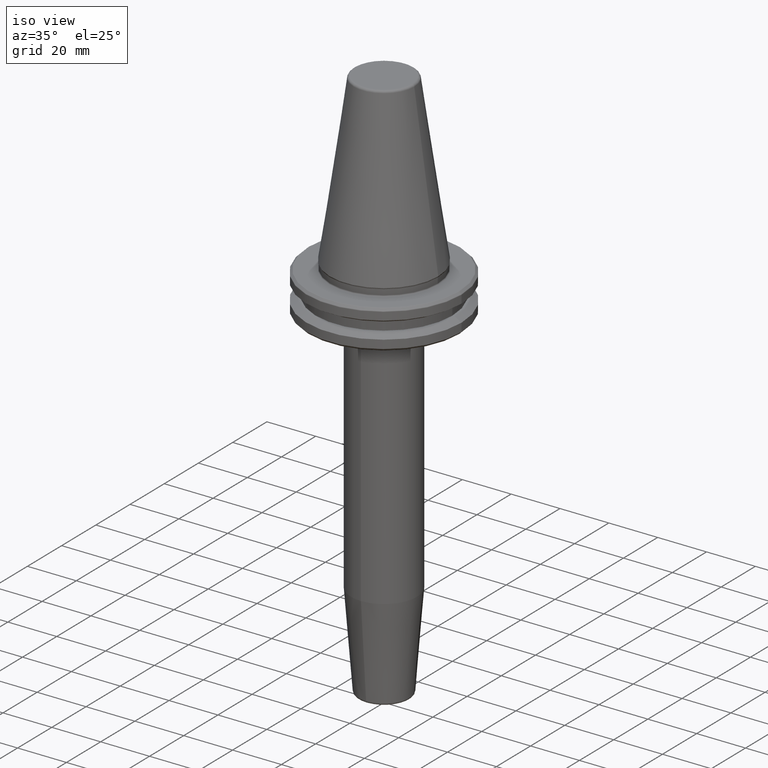
[diagram: clean part render]
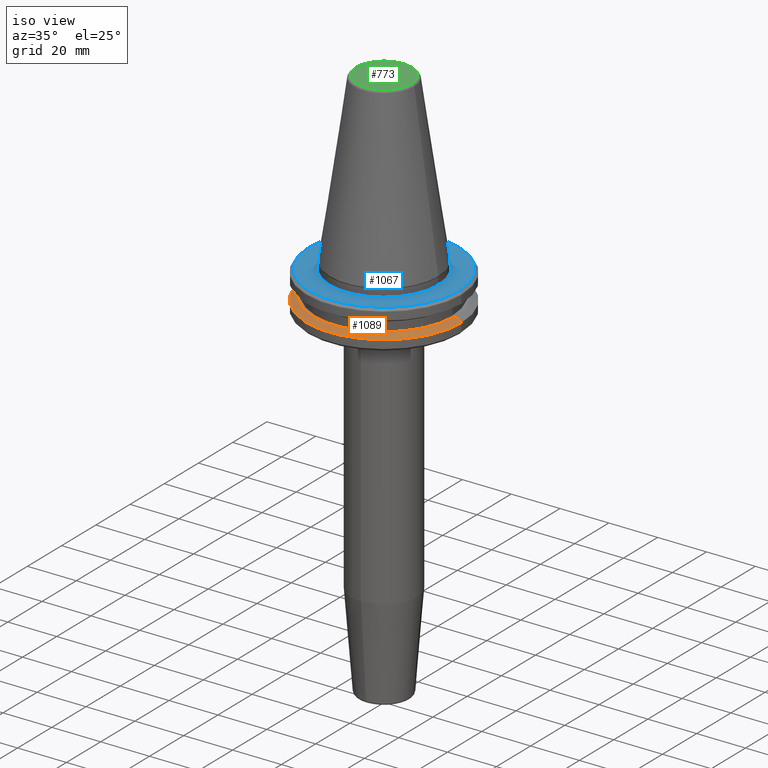
[diagram: same view with three faces highlighted in distinct colors, each labeled with its STEP entity id]
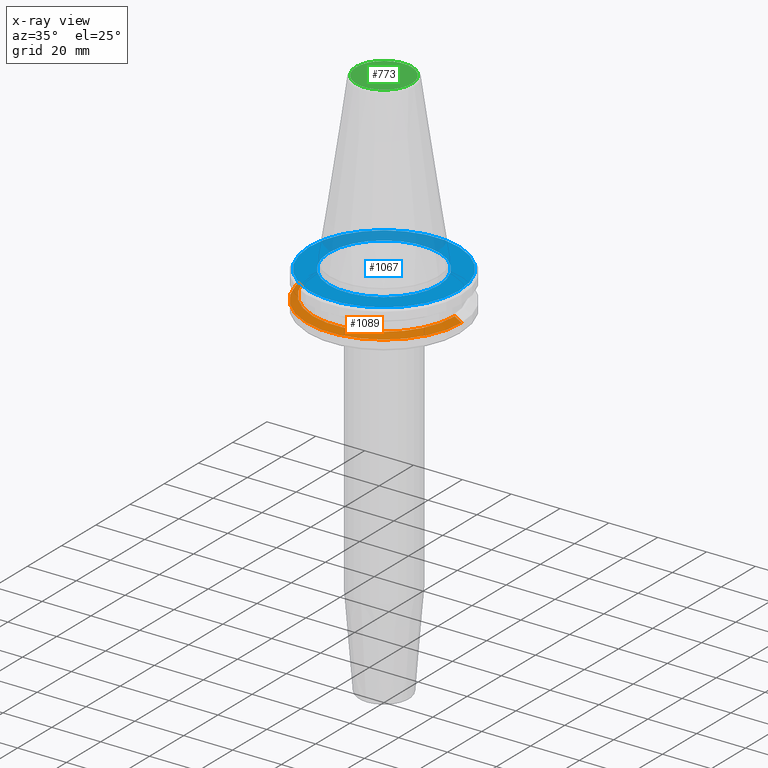
[diagram: x-ray of the same camera — body ghosted, the three highlighted faces saturated]
A machine part, iso view with three faces highlighted in distinct colors.
The next image is the same camera in x-ray (body ghosted, the three faces saturated) — at least one of them is partly hidden behind the body in this view.
Their STEP definitions:

[orange] entity #1089 — the highlighted conical surface has half-angle 60 deg.
#11 = AXIS2_PLACEMENT_3D ( 'NONE', #457, #555, #149 ) ;
#100 = ORIENTED_EDGE ( 'NONE', *, *, #562, .F. ) ;
#149 = DIRECTION ( 'NONE',  ( -1.000000000000000000, 0.0000000000000000000, 0.0000000000000000000 ) ) ;
#184 = CARTESIAN_POINT ( 'NONE',  ( 28.94089653438085100, 3.544237630528423800E-015, -13.00000000000001100 ) ) ;
#208 = DIRECTION ( 'NONE',  ( 1.000000000000000000, 0.0000000000000000000, 0.0000000000000000000 ) ) ;
#231 = LINE ( 'NONE', #289, #706 ) ;
#234 = FACE_OUTER_BOUND ( 'NONE', #1066, .T. ) ;
#236 = EDGE_CURVE ( 'NONE', #983, #947, #423, .T. ) ;
#267 = VECTOR ( 'NONE', #383, 999.9999999999998900 ) ;
#289 = CARTESIAN_POINT ( 'NONE',  ( -28.94089653438085100, 0.0000000000000000000, -13.00000000000001100 ) ) ;
#291 = CIRCLE ( 'NONE', #580, 28.94089653438085100 ) ;
#365 = AXIS2_PLACEMENT_3D ( 'NONE', #995, #410, #519 ) ;
#383 = DIRECTION ( 'NONE',  ( 0.8660254037844420400, 1.060575238724911000E-016, -0.4999999999999943900 ) ) ;
#409 = CARTESIAN_POINT ( 'NONE',  ( -28.94089653438085100, 0.0000000000000000000, -13.00000000000001100 ) ) ;
#410 = DIRECTION ( 'NONE',  ( -0.0000000000000000000, -0.0000000000000000000, 1.000000000000000000 ) ) ;
#423 = CIRCLE ( 'NONE', #365, 31.75000000000000000 ) ;
#457 = CARTESIAN_POINT ( 'NONE',  ( 0.0000000000000000000, 0.0000000000000000000, -13.00000000000001100 ) ) ;
#465 = VERTEX_POINT ( 'NONE', #638 ) ;
#469 = ORIENTED_EDGE ( 'NONE', *, *, #236, .T. ) ;
#476 = DIRECTION ( 'NONE',  ( -0.8660254037844420400, 0.0000000000000000000, -0.4999999999999943900 ) ) ;
#496 = LINE ( 'NONE', #184, #267 ) ;
#519 = DIRECTION ( 'NONE',  ( 1.000000000000000000, 0.0000000000000000000, 0.0000000000000000000 ) ) ;
#540 = CARTESIAN_POINT ( 'NONE',  ( -31.75000000000000000, 3.888253587292846500E-015, -14.62183664205671200 ) ) ;
#555 = DIRECTION ( 'NONE',  ( 0.0000000000000000000, 0.0000000000000000000, -1.000000000000000000 ) ) ;
#562 = EDGE_CURVE ( 'NONE', #673, #465, #291, .T. ) ;
#580 = AXIS2_PLACEMENT_3D ( 'NONE', #975, #761, #208 ) ;
#614 = EDGE_CURVE ( 'NONE', #465, #947, #496, .T. ) ;
#618 = EDGE_CURVE ( 'NONE', #673, #983, #231, .T. ) ;
#638 = CARTESIAN_POINT ( 'NONE',  ( 28.94089653438085100, 3.716245608910634800E-015, -13.00000000000001100 ) ) ;
#673 = VERTEX_POINT ( 'NONE', #409 ) ;
#706 = VECTOR ( 'NONE', #476, 999.9999999999998900 ) ;
#761 = DIRECTION ( 'NONE',  ( -0.0000000000000000000, -0.0000000000000000000, 1.000000000000000000 ) ) ;
#845 = ORIENTED_EDGE ( 'NONE', *, *, #614, .F. ) ;
#905 = CONICAL_SURFACE ( 'NONE', #11, 28.94089653438085100, 1.047197551196604300 ) ;
#947 = VERTEX_POINT ( 'NONE', #1097 ) ;
#959 = ORIENTED_EDGE ( 'NONE', *, *, #618, .T. ) ;
#975 = CARTESIAN_POINT ( 'NONE',  ( 0.0000000000000000000, 0.0000000000000000000, -13.00000000000001100 ) ) ;
#983 = VERTEX_POINT ( 'NONE', #540 ) ;
#995 = CARTESIAN_POINT ( 'NONE',  ( 0.0000000000000000000, 0.0000000000000000000, -14.62183664205671200 ) ) ;
#1066 = EDGE_LOOP ( 'NONE', ( #845, #100, #959, #469 ) ) ;
#1089 = ADVANCED_FACE ( 'NONE', ( #234 ), #905, .T. ) ;
#1097 = CARTESIAN_POINT ( 'NONE',  ( 31.75000000000000000, 0.0000000000000000000, -14.62183664205671200 ) ) ;

[blue] entity #1067 — the highlighted planar face has unit normal (0, -0, 1).
#1 = CIRCLE ( 'NONE', #297, 30.58431457505076200 ) ;
#4 = CARTESIAN_POINT ( 'NONE',  ( 0.0000000000000000000, 0.0000000000000000000, -3.199999999999994400 ) ) ;
#18 = ORIENTED_EDGE ( 'NONE', *, *, #751, .F. ) ;
#45 = CARTESIAN_POINT ( 'NONE',  ( 30.58431457505076200, 0.0000000000000000000, -3.199999999999994400 ) ) ;
#64 = AXIS2_PLACEMENT_3D ( 'NONE', #661, #88, #764 ) ;
#88 = DIRECTION ( 'NONE',  ( -0.0000000000000000000, -0.0000000000000000000, 1.000000000000000000 ) ) ;
#103 = DIRECTION ( 'NONE',  ( -0.0000000000000000000, -0.0000000000000000000, 1.000000000000000000 ) ) ;
#111 = AXIS2_PLACEMENT_3D ( 'NONE', #4, #201, #209 ) ;
#201 = DIRECTION ( 'NONE',  ( -0.0000000000000000000, -0.0000000000000000000, 1.000000000000000000 ) ) ;
#209 = DIRECTION ( 'NONE',  ( 1.000000000000000000, 0.0000000000000000000, 0.0000000000000000000 ) ) ;
#256 = DIRECTION ( 'NONE',  ( 1.000000000000000000, 0.0000000000000000000, 0.0000000000000000000 ) ) ;
#297 = AXIS2_PLACEMENT_3D ( 'NONE', #680, #103, #777 ) ;
#314 = DIRECTION ( 'NONE',  ( 1.000000000000000000, 0.0000000000000000000, 0.0000000000000000000 ) ) ;
#337 = CIRCLE ( 'NONE', #64, 22.50000000000000000 ) ;
#378 = EDGE_CURVE ( 'NONE', #744, #741, #1107, .T. ) ;
#428 = ORIENTED_EDGE ( 'NONE', *, *, #663, .T. ) ;
#436 = AXIS2_PLACEMENT_3D ( 'NONE', #452, #1210, #256 ) ;
#452 = CARTESIAN_POINT ( 'NONE',  ( 0.0000000000000000000, 0.0000000000000000000, -3.200000000000000200 ) ) ;
#475 = EDGE_LOOP ( 'NONE', ( #538, #18 ) ) ;
#486 = CARTESIAN_POINT ( 'NONE',  ( 22.50000000000000000, 0.0000000000000000000, -3.199999999999996600 ) ) ;
#497 = FACE_OUTER_BOUND ( 'NONE', #597, .T. ) ;
#538 = ORIENTED_EDGE ( 'NONE', *, *, #378, .F. ) ;
#558 = CARTESIAN_POINT ( 'NONE',  ( -30.58431457505076200, 3.762817415969875600E-015, -3.199999999999994400 ) ) ;
#597 = EDGE_LOOP ( 'NONE', ( #1126, #428 ) ) ;
#604 = DIRECTION ( 'NONE',  ( -0.0000000000000000000, -0.0000000000000000000, 1.000000000000000000 ) ) ;
#661 = CARTESIAN_POINT ( 'NONE',  ( 0.0000000000000000000, 0.0000000000000000000, -3.199999999999994400 ) ) ;
#663 = EDGE_CURVE ( 'NONE', #1235, #1043, #934, .T. ) ;
#680 = CARTESIAN_POINT ( 'NONE',  ( 0.0000000000000000000, 0.0000000000000000000, -3.199999999999994400 ) ) ;
#741 = VERTEX_POINT ( 'NONE', #1051 ) ;
#744 = VERTEX_POINT ( 'NONE', #486 ) ;
#751 = EDGE_CURVE ( 'NONE', #741, #744, #337, .T. ) ;
#764 = DIRECTION ( 'NONE',  ( 1.000000000000000000, 0.0000000000000000000, 0.0000000000000000000 ) ) ;
#777 = DIRECTION ( 'NONE',  ( 1.000000000000000000, 0.0000000000000000000, 0.0000000000000000000 ) ) ;
#824 = PLANE ( 'NONE',  #436 ) ;
#833 = EDGE_CURVE ( 'NONE', #1043, #1235, #1, .T. ) ;
#874 = CARTESIAN_POINT ( 'NONE',  ( 0.0000000000000000000, 0.0000000000000000000, -3.199999999999994400 ) ) ;
#934 = CIRCLE ( 'NONE', #111, 30.58431457505076200 ) ;
#1043 = VERTEX_POINT ( 'NONE', #45 ) ;
#1051 = CARTESIAN_POINT ( 'NONE',  ( -22.50000000000000000, 2.755455298081544800E-015, -3.199999999999996600 ) ) ;
#1067 = ADVANCED_FACE ( 'NONE', ( #497, #1230 ), #824, .T. ) ;
#1107 = CIRCLE ( 'NONE', #1167, 22.50000000000000000 ) ;
#1126 = ORIENTED_EDGE ( 'NONE', *, *, #833, .T. ) ;
#1167 = AXIS2_PLACEMENT_3D ( 'NONE', #874, #604, #314 ) ;
#1210 = DIRECTION ( 'NONE',  ( 0.0000000000000000000, -0.0000000000000000000, 1.000000000000000000 ) ) ;
#1230 = FACE_BOUND ( 'NONE', #475, .T. ) ;
#1235 = VERTEX_POINT ( 'NONE', #558 ) ;

[green] entity #773 — the highlighted planar face has unit normal (0, -0, 1).
#9 = VERTEX_POINT ( 'NONE', #815 ) ;
#63 = EDGE_CURVE ( 'NONE', #84, #9, #1191, .T. ) ;
#84 = VERTEX_POINT ( 'NONE', #1114 ) ;
#90 = DIRECTION ( 'NONE',  ( 1.000000000000000000, 0.0000000000000000000, 0.0000000000000000000 ) ) ;
#110 = EDGE_CURVE ( 'NONE', #9, #84, #1049, .T. ) ;
#141 = AXIS2_PLACEMENT_3D ( 'NONE', #533, #536, #1006 ) ;
#354 = AXIS2_PLACEMENT_3D ( 'NONE', #855, #664, #90 ) ;
#355 = ORIENTED_EDGE ( 'NONE', *, *, #110, .T. ) ;
#363 = AXIS2_PLACEMENT_3D ( 'NONE', #843, #853, #1233 ) ;
#494 = PLANE ( 'NONE',  #354 ) ;
#533 = CARTESIAN_POINT ( 'NONE',  ( 0.0000000000000000000, 0.0000000000000000000, 68.40000000000000600 ) ) ;
#536 = DIRECTION ( 'NONE',  ( -0.0000000000000000000, -0.0000000000000000000, 1.000000000000000000 ) ) ;
#664 = DIRECTION ( 'NONE',  ( 0.0000000000000000000, -0.0000000000000000000, 1.000000000000000000 ) ) ;
#773 = ADVANCED_FACE ( 'NONE', ( #808 ), #494, .T. ) ;
#808 = FACE_OUTER_BOUND ( 'NONE', #930, .T. ) ;
#815 = CARTESIAN_POINT ( 'NONE',  ( -11.38516258961893100, 1.454871700296352000E-015, 68.40000000000000600 ) ) ;
#843 = CARTESIAN_POINT ( 'NONE',  ( 0.0000000000000000000, 0.0000000000000000000, 68.40000000000000600 ) ) ;
#853 = DIRECTION ( 'NONE',  ( -0.0000000000000000000, -0.0000000000000000000, 1.000000000000000000 ) ) ;
#855 = CARTESIAN_POINT ( 'NONE',  ( 0.0000000000000000000, -8.337524199435086500E-014, 68.39999999999999100 ) ) ;
#930 = EDGE_LOOP ( 'NONE', ( #1131, #355 ) ) ;
#1006 = DIRECTION ( 'NONE',  ( 1.000000000000000000, 0.0000000000000000000, 0.0000000000000000000 ) ) ;
#1049 = CIRCLE ( 'NONE', #363, 11.38516258961893100 ) ;
#1114 = CARTESIAN_POINT ( 'NONE',  ( 11.38516258961893100, 0.0000000000000000000, 68.40000000000000600 ) ) ;
#1131 = ORIENTED_EDGE ( 'NONE', *, *, #63, .T. ) ;
#1191 = CIRCLE ( 'NONE', #141, 11.38516258961893100 ) ;
#1233 = DIRECTION ( 'NONE',  ( 1.000000000000000000, 0.0000000000000000000, 0.0000000000000000000 ) ) ;